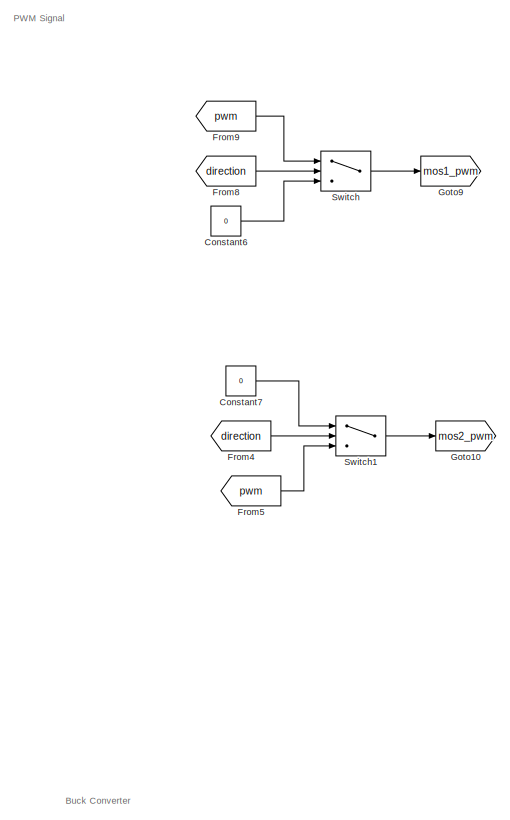
[diagram: root canvas - part 1/9, top center region]
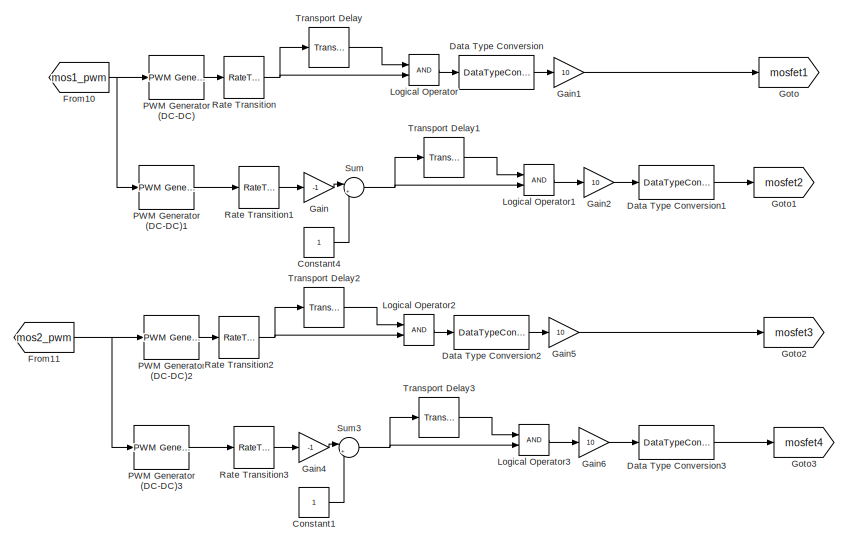
[diagram: root canvas - part 2/9, top right region]
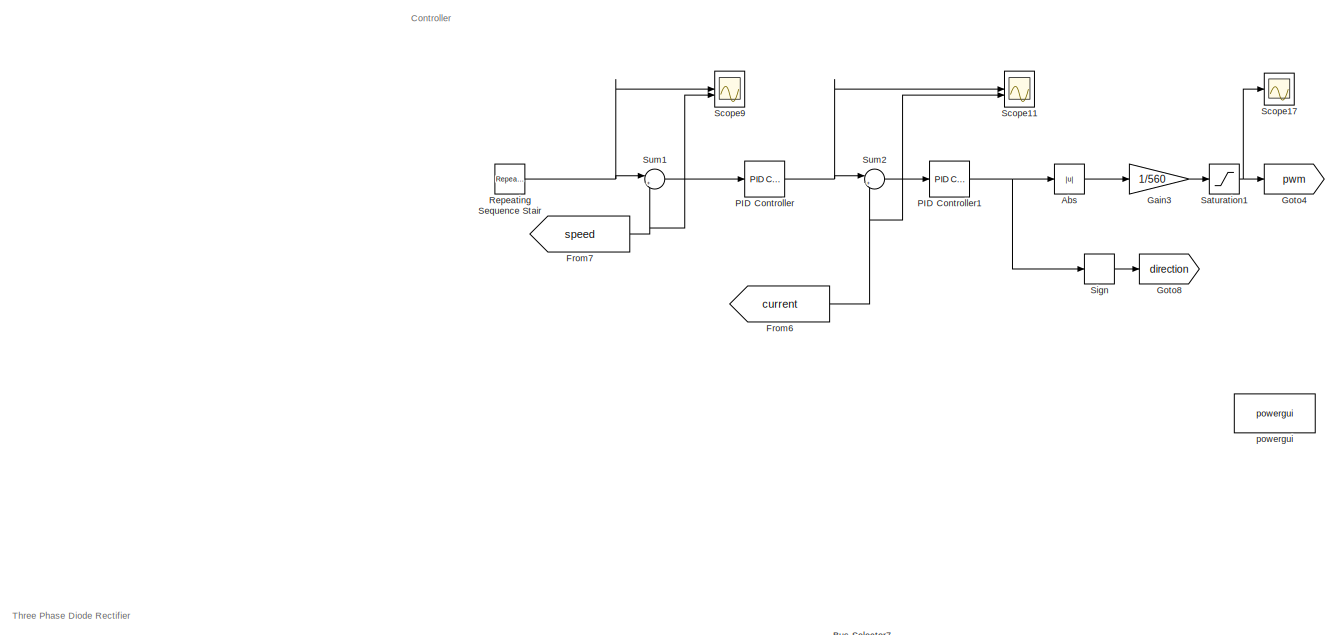
[diagram: root canvas - part 3/9, top left region]
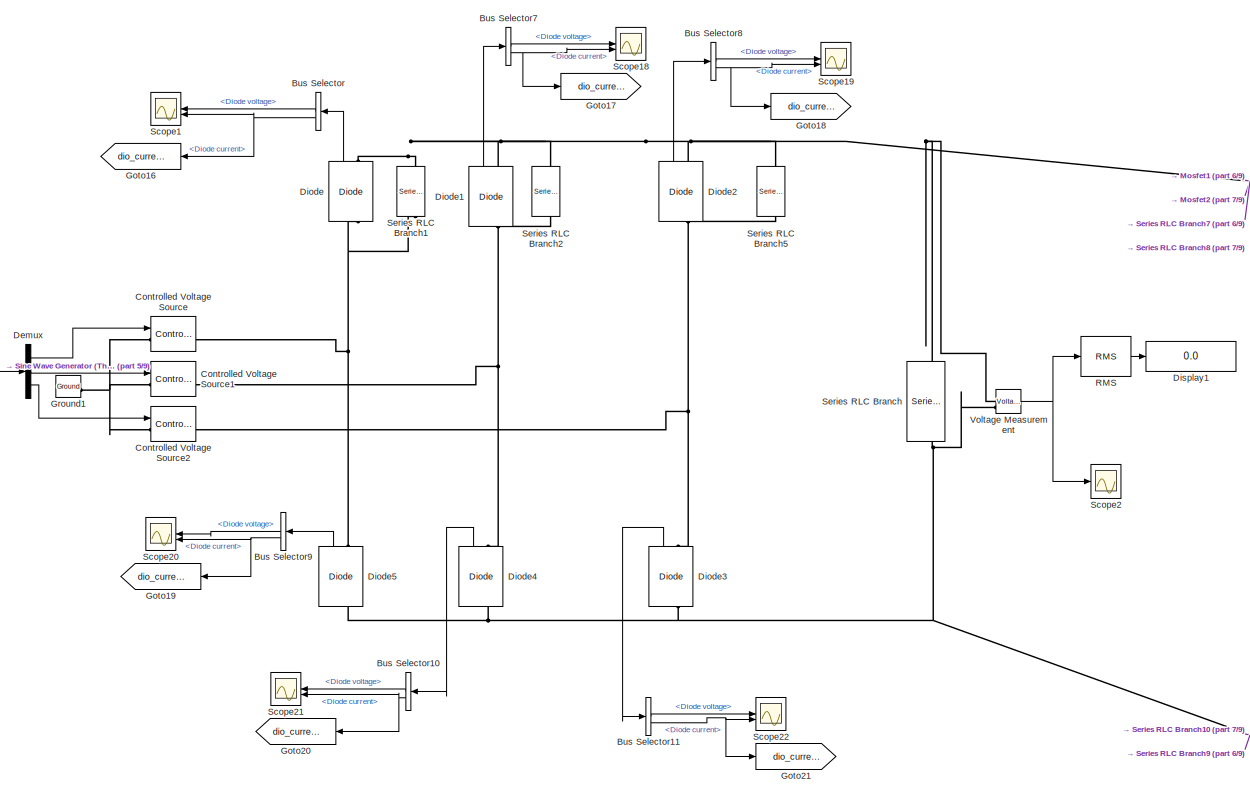
[diagram: root canvas - part 4/9, middle left region]
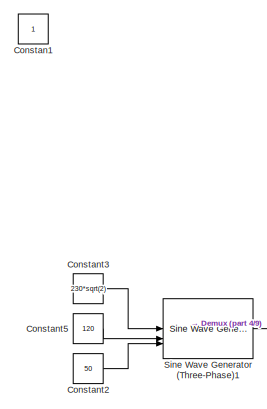
[diagram: root canvas - part 5/9, middle left region]
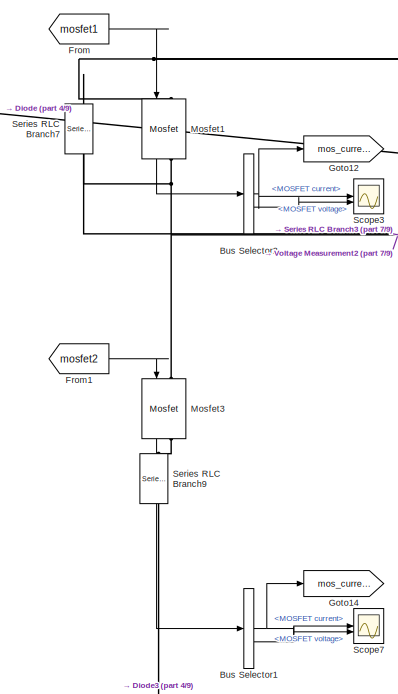
[diagram: root canvas - part 6/9, central region]
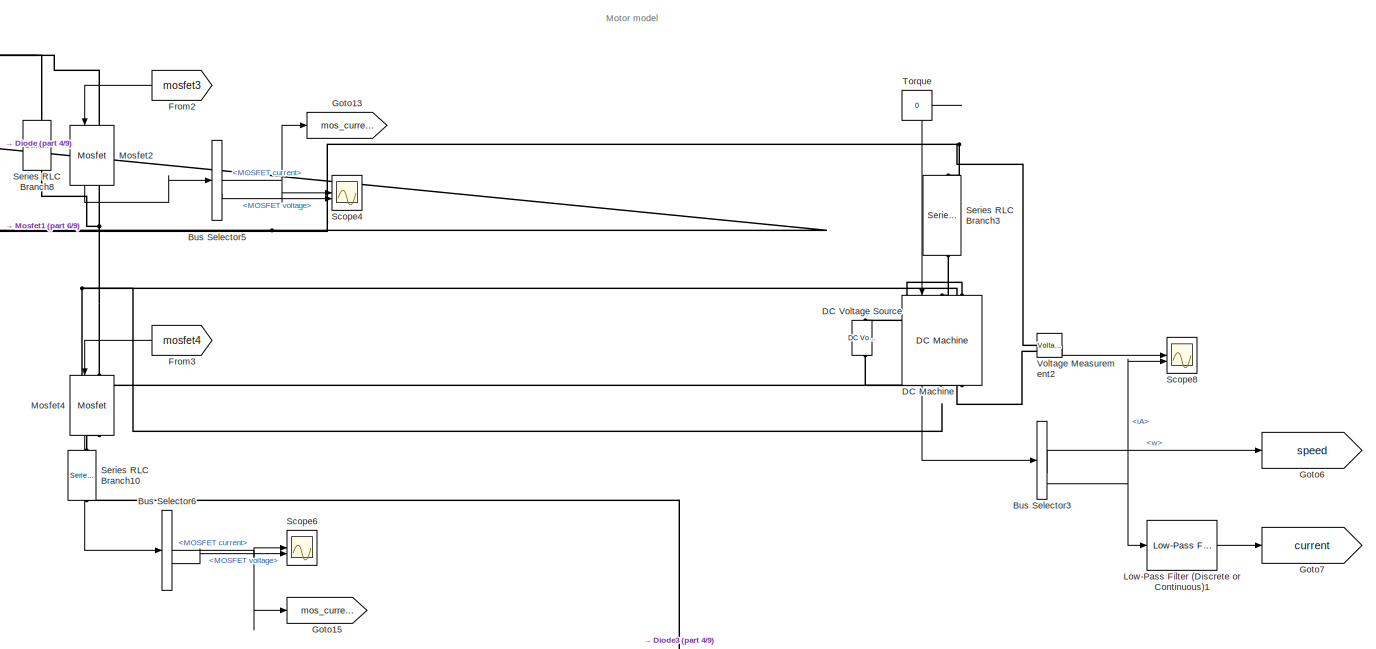
[diagram: root canvas - part 7/9, middle right region]
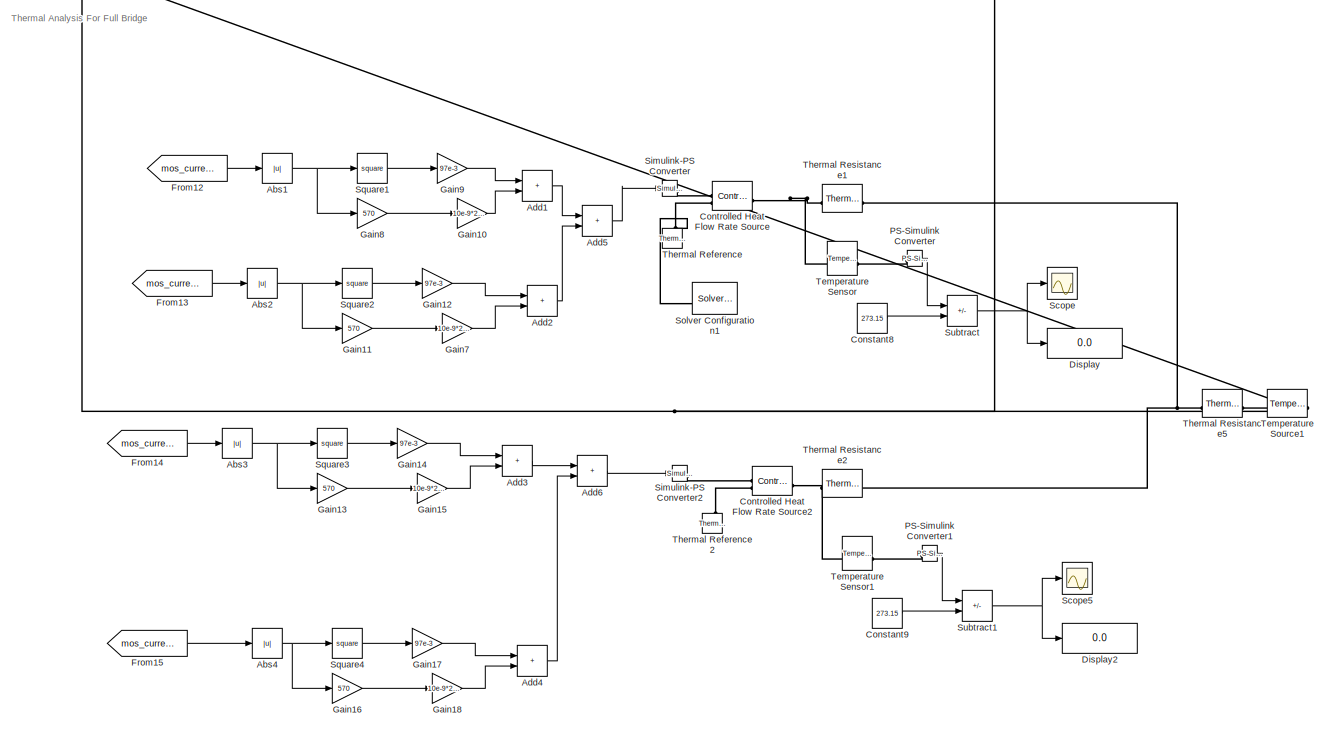
[diagram: root canvas - part 8/9, bottom right region]
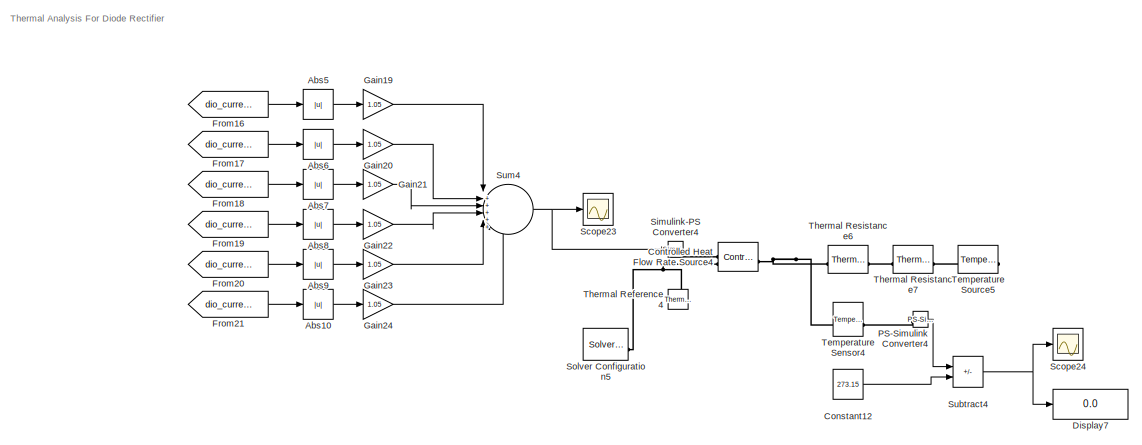
[diagram: root canvas - part 9/9, bottom left region]
MODEL slx_0c088d15fb3c
KIND model
CONFIG AbsTol = auto
CONFIG EnableMultiTasking = off
CONFIG FixedStep = 1e-6
CONFIG MaxStep = auto
CONFIG MinStep = auto
CONFIG RelTol = 1e-3
CONFIG SampleTimeConstraint = Unconstrained
CONFIG SolverName = VariableStepAuto
CONFIG StartTime = 0
CONFIG StopTime = 5*4
BLOCK [Abs] Abs
  SaturateOnIntegerOverflow = off
BLOCK [Abs] Abs1
  SaturateOnIntegerOverflow = off
BLOCK [Abs] Abs10
  SaturateOnIntegerOverflow = off
BLOCK [Abs] Abs2
  SaturateOnIntegerOverflow = off
BLOCK [Abs] Abs3
  SaturateOnIntegerOverflow = off
BLOCK [Abs] Abs4
  SaturateOnIntegerOverflow = off
BLOCK [Abs] Abs5
  SaturateOnIntegerOverflow = off
BLOCK [Abs] Abs6
  SaturateOnIntegerOverflow = off
BLOCK [Abs] Abs7
  SaturateOnIntegerOverflow = off
BLOCK [Abs] Abs8
  SaturateOnIntegerOverflow = off
BLOCK [Abs] Abs9
  SaturateOnIntegerOverflow = off
BLOCK [Sum] Add1
  IconShape = rectangular
BLOCK [Sum] Add2
  IconShape = rectangular
BLOCK [Sum] Add3
  IconShape = rectangular
BLOCK [Sum] Add4
  IconShape = rectangular
BLOCK [Sum] Add5
  IconShape = rectangular
BLOCK [Sum] Add6
  IconShape = rectangular
BLOCK [BusSelector] Bus Selector
  NameLocation = top
  OutputSignals = Diode voltage,Diode current
BLOCK [BusSelector] Bus Selector1
  OutputSignals = MOSFET current,MOSFET voltage
BLOCK [BusSelector] Bus Selector10
  NameLocation = top
  OutputSignals = Diode voltage,Diode current
BLOCK [BusSelector] Bus Selector11
  OutputSignals = Diode voltage,Diode current
BLOCK [BusSelector] Bus Selector2
  OutputSignals = MOSFET current,MOSFET voltage
BLOCK [BusSelector] Bus Selector3
  OutputSignals = Te,w,iF,iA
BLOCK [BusSelector] Bus Selector5
  OutputSignals = MOSFET current,MOSFET voltage
BLOCK [BusSelector] Bus Selector6
  OutputSignals = MOSFET current,MOSFET voltage
BLOCK [BusSelector] Bus Selector7
  OutputSignals = Diode voltage,Diode current
BLOCK [BusSelector] Bus Selector8
  OutputSignals = Diode voltage,Diode current
BLOCK [BusSelector] Bus Selector9
  NameLocation = top
  OutputSignals = Diode voltage,Diode current
BLOCK [Constant] Constan1
  IOType = siggen
BLOCK [Constant] Constant1
BLOCK [Constant] Constant12
  Value = 273.15
BLOCK [Constant] Constant2
  Value = 50
BLOCK [Constant] Constant3
  Value = 230*sqrt(2)
BLOCK [Constant] Constant4
BLOCK [Constant] Constant5
  Value = 120
BLOCK [Constant] Constant6
  Value = 0
BLOCK [Constant] Constant7
  Value = 0
BLOCK [Constant] Constant8
  Value = 273.15
BLOCK [Constant] Constant9
  Value = 273.15
BLOCK [Reference] Controlled Heat Flow Rate Source  REF=fl_lib/Thermal/Thermal Sources/Controlled Heat Flow
Rate Source
  SourceBlock = fl_lib/Thermal/Thermal Sources/Controlled Heat Flow\nRate Source
  SourceType = Controlled Heat Flow\nRate Source
BLOCK [Reference] Controlled Heat Flow Rate Source2  REF=fl_lib/Thermal/Thermal Sources/Controlled Heat Flow
Rate Source
  SourceBlock = fl_lib/Thermal/Thermal Sources/Controlled Heat Flow\nRate Source
  SourceType = Controlled Heat Flow\nRate Source
BLOCK [Reference] Controlled Heat Flow Rate Source4  REF=fl_lib/Thermal/Thermal Sources/Controlled Heat Flow
Rate Source
  SourceBlock = fl_lib/Thermal/Thermal Sources/Controlled Heat Flow\nRate Source
  SourceType = Controlled Heat Flow\nRate Source
BLOCK [Reference] Controlled Voltage Source  REF=spsControlledVoltageSourceLib/Controlled Voltage Source
  LibrarySourceBlock = sps_lib/Sources/Controlled Voltage Source
  NameLocation = left
  SourceBlock = spsControlledVoltageSourceLib/Controlled Voltage Source
  SourceType = Controlled Voltage Source
BLOCK [Reference] Controlled Voltage Source1  REF=spsControlledVoltageSourceLib/Controlled Voltage Source
  LibrarySourceBlock = sps_lib/Sources/Controlled Voltage Source
  NameLocation = left
  SourceBlock = spsControlledVoltageSourceLib/Controlled Voltage Source
  SourceType = Controlled Voltage Source
BLOCK [Reference] Controlled Voltage Source2  REF=spsControlledVoltageSourceLib/Controlled Voltage Source
  LibrarySourceBlock = sps_lib/Sources/Controlled Voltage Source
  NameLocation = left
  SourceBlock = spsControlledVoltageSourceLib/Controlled Voltage Source
  SourceType = Controlled Voltage Source
BLOCK [Reference] DC Machine  REF=spsDCMachineLib/DC Machine
  LibrarySourceBlock = sps_lib/Electrical Machines/DC Machine
  NameLocation = left
  SourceBlock = spsDCMachineLib/DC Machine
  SourceType = DC machine
BLOCK [Reference] DC Voltage Source  REF=spsDCVoltageSourceLib/DC Voltage Source
  LibrarySourceBlock = sps_lib/Sources/DC Voltage Source
  SourceBlock = spsDCVoltageSourceLib/DC Voltage Source
  SourceType = DC Voltage Source
BLOCK [DataTypeConversion] Data Type Conversion
  OutDataTypeStr = double
  RndMeth = Floor
  SaturateOnIntegerOverflow = off
BLOCK [DataTypeConversion] Data Type Conversion1
  OutDataTypeStr = double
  RndMeth = Floor
  SaturateOnIntegerOverflow = off
BLOCK [DataTypeConversion] Data Type Conversion2
  OutDataTypeStr = double
  RndMeth = Floor
  SaturateOnIntegerOverflow = off
BLOCK [DataTypeConversion] Data Type Conversion3
  OutDataTypeStr = double
  RndMeth = Floor
  SaturateOnIntegerOverflow = off
BLOCK [Demux] Demux
  Outputs = 3
BLOCK [Reference] Diode  REF=spsDiodeLib/Diode
  LibrarySourceBlock = sps_lib/Power Electronics/Diode
  NameLocation = right
  SourceBlock = spsDiodeLib/Diode
  SourceType = Diode
BLOCK [Reference] Diode1  REF=spsDiodeLib/Diode
  LibrarySourceBlock = sps_lib/Power Electronics/Diode
  NameLocation = right
  SourceBlock = spsDiodeLib/Diode
  SourceType = Diode
BLOCK [Reference] Diode2  REF=spsDiodeLib/Diode
  LibrarySourceBlock = sps_lib/Power Electronics/Diode
  NameLocation = right
  SourceBlock = spsDiodeLib/Diode
  SourceType = Diode
BLOCK [Reference] Diode3  REF=spsDiodeLib/Diode
  LibrarySourceBlock = sps_lib/Power Electronics/Diode
  NameLocation = right
  SourceBlock = spsDiodeLib/Diode
  SourceType = Diode
BLOCK [Reference] Diode4  REF=spsDiodeLib/Diode
  LibrarySourceBlock = sps_lib/Power Electronics/Diode
  NameLocation = right
  SourceBlock = spsDiodeLib/Diode
  SourceType = Diode
BLOCK [Reference] Diode5  REF=spsDiodeLib/Diode
  LibrarySourceBlock = sps_lib/Power Electronics/Diode
  NameLocation = right
  SourceBlock = spsDiodeLib/Diode
  SourceType = Diode
BLOCK [Display] Display
  Decimation = 1
BLOCK [Display] Display1
  Decimation = 1
BLOCK [Display] Display2
  Decimation = 1
BLOCK [Display] Display7
  Decimation = 1
BLOCK [From] From
  GotoTag = mosfet1
BLOCK [From] From1
  GotoTag = mosfet2
BLOCK [From] From10
  GotoTag = mos1_pwm
BLOCK [From] From11
  GotoTag = mos2_pwm
BLOCK [From] From12
  GotoTag = mos_current1
BLOCK [From] From13
  GotoTag = mos_current2
BLOCK [From] From14
  GotoTag = mos_current3
BLOCK [From] From15
  GotoTag = mos_current4
BLOCK [From] From16
  GotoTag = dio_current1
BLOCK [From] From17
  GotoTag = dio_current2
BLOCK [From] From18
  GotoTag = dio_current3
BLOCK [From] From19
  GotoTag = dio_current4
BLOCK [From] From2
  GotoTag = mosfet3
  NameLocation = top
BLOCK [From] From20
  GotoTag = dio_current5
BLOCK [From] From21
  GotoTag = dio_current6
BLOCK [From] From3
  GotoTag = mosfet4
  NameLocation = top
BLOCK [From] From4
  GotoTag = direction
BLOCK [From] From5
  GotoTag = pwm
BLOCK [From] From6
  GotoTag = current
BLOCK [From] From7
  GotoTag = speed
BLOCK [From] From8
  GotoTag = direction
BLOCK [From] From9
  GotoTag = pwm
BLOCK [Gain] Gain
  Gain = -1
BLOCK [Gain] Gain1
  Gain = 10
BLOCK [Gain] Gain10
  Gain = 10e-9*25000
BLOCK [Gain] Gain11
  Gain = 570
BLOCK [Gain] Gain12
  Gain = 97e-3
BLOCK [Gain] Gain13
  Gain = 570
BLOCK [Gain] Gain14
  Gain = 97e-3
BLOCK [Gain] Gain15
  Gain = 10e-9*25000
BLOCK [Gain] Gain16
  Gain = 570
BLOCK [Gain] Gain17
  Gain = 97e-3
BLOCK [Gain] Gain18
  Gain = 10e-9*25000
BLOCK [Gain] Gain19
  Gain = 1.05
BLOCK [Gain] Gain2
  Gain = 10
BLOCK [Gain] Gain20
  Gain = 1.05
BLOCK [Gain] Gain21
  Gain = 1.05
BLOCK [Gain] Gain22
  Gain = 1.05
BLOCK [Gain] Gain23
  Gain = 1.05
BLOCK [Gain] Gain24
  Gain = 1.05
BLOCK [Gain] Gain3
  Gain = 1/560
BLOCK [Gain] Gain4
  Gain = -1
BLOCK [Gain] Gain5
  Gain = 10
BLOCK [Gain] Gain6
  Gain = 10
BLOCK [Gain] Gain7
  Gain = 10e-9*25000
BLOCK [Gain] Gain8
  Gain = 570
BLOCK [Gain] Gain9
  Gain = 97e-3
BLOCK [Goto] Goto
  GotoTag = mosfet1
BLOCK [Goto] Goto1
  GotoTag = mosfet2
BLOCK [Goto] Goto10
  GotoTag = mos2_pwm
BLOCK [Goto] Goto12
  GotoTag = mos_current1
BLOCK [Goto] Goto13
  GotoTag = mos_current3
BLOCK [Goto] Goto14
  GotoTag = mos_current2
BLOCK [Goto] Goto15
  GotoTag = mos_current4
BLOCK [Goto] Goto16
  GotoTag = dio_current1
  NameLocation = top
BLOCK [Goto] Goto17
  GotoTag = dio_current2
BLOCK [Goto] Goto18
  GotoTag = dio_current3
BLOCK [Goto] Goto19
  GotoTag = dio_current4
  NameLocation = top
BLOCK [Goto] Goto2
  GotoTag = mosfet3
BLOCK [Goto] Goto20
  GotoTag = dio_current5
  NameLocation = top
BLOCK [Goto] Goto21
  GotoTag = dio_current6
BLOCK [Goto] Goto3
  GotoTag = mosfet4
BLOCK [Goto] Goto4
  GotoTag = pwm
BLOCK [Goto] Goto6
  GotoTag = speed
BLOCK [Goto] Goto7
  GotoTag = current
BLOCK [Goto] Goto8
  GotoTag = direction
BLOCK [Goto] Goto9
  GotoTag = mos1_pwm
BLOCK [Reference] Ground1  REF=spsGroundLib/Ground
  LibrarySourceBlock = sps_lib/Utilities/Ground
  SourceBlock = spsGroundLib/Ground
  SourceType = Ground
BLOCK [Logic] Logical Operator
  AllPortsSameDT = off
  OutDataTypeStr = boolean
BLOCK [Logic] Logical Operator1
  AllPortsSameDT = off
  OutDataTypeStr = boolean
BLOCK [Logic] Logical Operator2
  AllPortsSameDT = off
  OutDataTypeStr = boolean
BLOCK [Logic] Logical Operator3
  AllPortsSameDT = off
  OutDataTypeStr = boolean
BLOCK [Reference] Low-Pass Filter (Discrete or Continuous)1  REF=eeGeneralControl/Low-Pass Filter
(Discrete or Continuous)
  LibrarySourceBlock = ee_sl_lib/General Control/Low-Pass Filter\n(Discrete or Continuous)
  SourceBlock = eeGeneralControl/Low-Pass Filter\n(Discrete or Continuous)
  SourceType = Low-Pass Filter (Discrete or Continuous)
BLOCK [Reference] Mosfet1  REF=spsMosfetLib/Mosfet
  LibrarySourceBlock = sps_lib/Power Electronics/Mosfet
  NameLocation = left
  SourceBlock = spsMosfetLib/Mosfet
  SourceType = Mosfet
BLOCK [Reference] Mosfet2  REF=spsMosfetLib/Mosfet
  LibrarySourceBlock = sps_lib/Power Electronics/Mosfet
  NameLocation = left
  SourceBlock = spsMosfetLib/Mosfet
  SourceType = Mosfet
BLOCK [Reference] Mosfet3  REF=spsMosfetLib/Mosfet
  LibrarySourceBlock = sps_lib/Power Electronics/Mosfet
  NameLocation = left
  SourceBlock = spsMosfetLib/Mosfet
  SourceType = Mosfet
BLOCK [Reference] Mosfet4  REF=spsMosfetLib/Mosfet
  LibrarySourceBlock = sps_lib/Power Electronics/Mosfet
  NameLocation = left
  SourceBlock = spsMosfetLib/Mosfet
  SourceType = Mosfet
BLOCK [Reference] PID Controller  REF=slpidlib/PID Controller
  LibrarySourceBlock = simulink/Continuous/PID Controller
  SourceBlock = slpidlib/PID Controller
  SourceType = PID 1dof
BLOCK [Reference] PID Controller1  REF=slpidlib/PID Controller
  LibrarySourceBlock = simulink/Continuous/PID Controller
  SourceBlock = slpidlib/PID Controller
  SourceType = PID 1dof
BLOCK [Reference] PS-Simulink Converter  REF=nesl_utility/PS-Simulink
Converter
  SourceBlock = nesl_utility/PS-Simulink\nConverter
  SourceType = PS-Simulink\nConverter
BLOCK [Reference] PS-Simulink Converter1  REF=nesl_utility/PS-Simulink
Converter
  SourceBlock = nesl_utility/PS-Simulink\nConverter
  SourceType = PS-Simulink\nConverter
BLOCK [Reference] PS-Simulink Converter4  REF=nesl_utility/PS-Simulink
Converter
  SourceBlock = nesl_utility/PS-Simulink\nConverter
  SourceType = PS-Simulink\nConverter
BLOCK [Reference] PWM Generator (DC-DC)  REF=spsPWMGeneratorDCDCLib/PWM Generator
(DC-DC)
  LibrarySourceBlock = sps_lib/Power Electronics/Power Electronics Control/PWM Generator\n(DC-DC)
  SourceBlock = spsPWMGeneratorDCDCLib/PWM Generator\n(DC-DC)
  SourceType = PWM Generator (DC-DC)
BLOCK [Reference] PWM Generator (DC-DC)1  REF=spsPWMGeneratorDCDCLib/PWM Generator
(DC-DC)
  LibrarySourceBlock = sps_lib/Power Electronics/Power Electronics Control/PWM Generator\n(DC-DC)
  SourceBlock = spsPWMGeneratorDCDCLib/PWM Generator\n(DC-DC)
  SourceType = PWM Generator (DC-DC)
BLOCK [Reference] PWM Generator (DC-DC)2  REF=spsPWMGeneratorDCDCLib/PWM Generator
(DC-DC)
  LibrarySourceBlock = sps_lib/Power Electronics/Power Electronics Control/PWM Generator\n(DC-DC)
  SourceBlock = spsPWMGeneratorDCDCLib/PWM Generator\n(DC-DC)
  SourceType = PWM Generator (DC-DC)
BLOCK [Reference] PWM Generator (DC-DC)3  REF=spsPWMGeneratorDCDCLib/PWM Generator
(DC-DC)
  LibrarySourceBlock = sps_lib/Power Electronics/Power Electronics Control/PWM Generator\n(DC-DC)
  SourceBlock = spsPWMGeneratorDCDCLib/PWM Generator\n(DC-DC)
  SourceType = PWM Generator (DC-DC)
BLOCK [Reference] RMS  REF=spsRMSLib/RMS
  LibrarySourceBlock = sps_lib/Sensors and Measurements/RMS
  SourceBlock = spsRMSLib/RMS
  SourceType = RMS
BLOCK [RateTransition] Rate Transition
  OutPortSampleTime = 1e-6
BLOCK [RateTransition] Rate Transition1
  OutPortSampleTime = 1e-6
BLOCK [RateTransition] Rate Transition2
  OutPortSampleTime = 1e-6
BLOCK [RateTransition] Rate Transition3
  OutPortSampleTime = 1e-6
BLOCK [Reference] Repeating Sequence Stair  REF=simulink/Sources/Repeating
Sequence
Stair
  SourceBlock = simulink/Sources/Repeating\nSequence\nStair
  SourceType = Repeating Sequence Stair
BLOCK [Saturate] Saturation1
  LowerLimit = 0
  UpperLimit = 0.32
BLOCK [Scope] Scope
  Floating = off
  NumInputPorts = 1
  ScopeSpecificationString = Simulink.scopes.TimeScopeBlockCfg('CurrentConfiguration', extmgr.ConfigurationSet(extmgr.Configuration('Core','General UI',true,'FigureColor',[1 1 1]),extmgr.Configuration('Core','Source UI',true),extmgr.Configuration('Sources','WiredSimulink',true,'DataLoggingVariableName','ScopeData5'),extmgr.Configuration('Visuals','Time Domain',true,'SerializedDisplays',{struct('MinYLimReal','14.45917','MaxYLi...<+1568ch>
BLOCK [Scope] Scope1
  Floating = off
  NameLocation = top
  NumInputPorts = 2
  ScopeSpecificationString = Simulink.scopes.TimeScopeBlockCfg('CurrentConfiguration', extmgr.ConfigurationSet(extmgr.Configuration('Core','General UI',true,'FigureColor',[1 1 1]),extmgr.Configuration('Core','Source UI',true),extmgr.Configuration('Sources','WiredSimulink',true,'DataLoggingVariableName','ScopeData1'),extmgr.Configuration('Visuals','Time Domain',true,'SerializedDisplays',{struct('MinYLimReal','-670.67975','MaxY...<+2390ch>
BLOCK [Scope] Scope11
  Floating = off
  NumInputPorts = 2
  ScopeSpecificationString = Simulink.scopes.TimeScopeBlockCfg('CurrentConfiguration', extmgr.ConfigurationSet(extmgr.Configuration('Core','General UI',true,'FigureColor',[1 1 1]),extmgr.Configuration('Core','Source UI',true),extmgr.Configuration('Sources','WiredSimulink',true,'DataLoggingVariableName','ScopeData3'),extmgr.Configuration('Visuals','Time Domain',true,'SerializedDisplays',{struct('MinYLimReal','-18.75','MaxYLimR...<+2682ch>
BLOCK [Scope] Scope17
  Floating = off
  NumInputPorts = 1
  ScopeSpecificationString = Simulink.scopes.TimeScopeBlockCfg('CurrentConfiguration', extmgr.ConfigurationSet(extmgr.Configuration('Core','General UI',true),extmgr.Configuration('Core','Source UI',true),extmgr.Configuration('Sources','WiredSimulink',true,'DataLoggingVariableName','ScopeData4'),extmgr.Configuration('Visuals','Time Domain',true,'SerializedDisplays',{struct('MinYLimReal','-0.01339','MaxYLimReal','0.12054','YLab...<+1484ch>
BLOCK [Scope] Scope18
  Floating = off
  NumInputPorts = 2
  ScopeSpecificationString = Simulink.scopes.TimeScopeBlockCfg('CurrentConfiguration', extmgr.ConfigurationSet(extmgr.Configuration('Core','General UI',true,'FigureColor',[1 1 1]),extmgr.Configuration('Core','Source UI',true),extmgr.Configuration('Sources','WiredSimulink',true,'DataLoggingVariableName','ScopeData6'),extmgr.Configuration('Visuals','Time Domain',true,'SerializedDisplays',{struct('MinYLimReal','-636.73282','MaxY...<+2368ch>
BLOCK [Scope] Scope19
  Floating = off
  NumInputPorts = 2
  ScopeSpecificationString = Simulink.scopes.TimeScopeBlockCfg('CurrentConfiguration', extmgr.ConfigurationSet(extmgr.Configuration('Core','General UI',true,'FigureColor',[1 1 1]),extmgr.Configuration('Core','Source UI',true),extmgr.Configuration('Sources','WiredSimulink',true,'DataLoggingVariableName','ScopeData7'),extmgr.Configuration('Visuals','Time Domain',true,'SerializedDisplays',{struct('MinYLimReal','-721.95058','MaxY...<+2368ch>
BLOCK [Scope] Scope2
  Floating = off
  NumInputPorts = 1
  ScopeSpecificationString = Simulink.scopes.TimeScopeBlockCfg('CurrentConfiguration', extmgr.ConfigurationSet(extmgr.Configuration('Core','General UI',true,'FigureColor',[1 1 1]),extmgr.Configuration('Core','Source UI',true),extmgr.Configuration('Sources','WiredSimulink',true,'DataLoggingVariableName','ScopeData1'),extmgr.Configuration('Visuals','Time Domain',true,'SerializedDisplays',{struct('MinYLimReal','459.08107','MaxYL...<+1775ch>
BLOCK [Scope] Scope20
  Floating = off
  NameLocation = top
  NumInputPorts = 2
  ScopeSpecificationString = Simulink.scopes.TimeScopeBlockCfg('CurrentConfiguration', extmgr.ConfigurationSet(extmgr.Configuration('Core','General UI',true,'FigureColor',[1 1 1]),extmgr.Configuration('Core','Source UI',true),extmgr.Configuration('Sources','WiredSimulink',true,'DataLoggingVariableName','ScopeData8'),extmgr.Configuration('Visuals','Time Domain',true,'SerializedDisplays',{struct('MinYLimReal','-658.67542','MaxY...<+2368ch>
BLOCK [Scope] Scope21
  Floating = off
  NameLocation = top
  NumInputPorts = 2
  ScopeSpecificationString = Simulink.scopes.TimeScopeBlockCfg('CurrentConfiguration', extmgr.ConfigurationSet(extmgr.Configuration('Core','General UI',true,'FigureColor',[1 1 1]),extmgr.Configuration('Core','Source UI',true),extmgr.Configuration('Sources','WiredSimulink',true,'DataLoggingVariableName','ScopeData9'),extmgr.Configuration('Visuals','Time Domain',true,'SerializedDisplays',{struct('MinYLimReal','-658.67542','MaxY...<+2368ch>
BLOCK [Scope] Scope22
  Floating = off
  NumInputPorts = 2
  ScopeSpecificationString = Simulink.scopes.TimeScopeBlockCfg('CurrentConfiguration', extmgr.ConfigurationSet(extmgr.Configuration('Core','General UI',true,'FigureColor',[1 1 1]),extmgr.Configuration('Core','Source UI',true),extmgr.Configuration('Sources','WiredSimulink',true,'DataLoggingVariableName','ScopeData10'),extmgr.Configuration('Visuals','Time Domain',true,'SerializedDisplays',{struct('MinYLimReal','-658.67542','Max...<+2369ch>
BLOCK [Scope] Scope23
  Floating = off
  NumInputPorts = 1
  ScopeSpecificationString = Simulink.scopes.TimeScopeBlockCfg('CurrentConfiguration', extmgr.ConfigurationSet(extmgr.Configuration('Core','General UI',true),extmgr.Configuration('Core','Source UI',true),extmgr.Configuration('Sources','WiredSimulink',true,'DataLoggingVariableName','ScopeData11'),extmgr.Configuration('Visuals','Time Domain',true,'SerializedDisplays',{struct('MinYLimReal','-4.26021','MaxYLimReal','38.34187','YL...<+1501ch>
BLOCK [Scope] Scope24
  Floating = off
  NumInputPorts = 1
  ScopeSpecificationString = Simulink.scopes.TimeScopeBlockCfg('CurrentConfiguration', extmgr.ConfigurationSet(extmgr.Configuration('Core','General UI',true,'FigureColor',[1 1 1]),extmgr.Configuration('Core','Source UI',true),extmgr.Configuration('Sources','WiredSimulink',true,'DataLoggingVariableName','ScopeData12'),extmgr.Configuration('Visuals','Time Domain',true,'SerializedDisplays',{struct('MinYLimReal','6.34635','MaxYLi...<+1566ch>
BLOCK [Scope] Scope3
  Floating = off
  NumInputPorts = 2
  ScopeSpecificationString = Simulink.scopes.TimeScopeBlockCfg('CurrentConfiguration', extmgr.ConfigurationSet(extmgr.Configuration('Core','General UI',true,'FigureColor',[1 1 1]),extmgr.Configuration('Core','Source UI',true),extmgr.Configuration('Sources','WiredSimulink',true,'DataLoggingVariableName','ScopeData1'),extmgr.Configuration('Visuals','Time Domain',true,'SerializedDisplays',{struct('MinYLimReal','-10.71655','MaxYL...<+2449ch>
BLOCK [Scope] Scope4
  Floating = off
  NumInputPorts = 2
  ScopeSpecificationString = Simulink.scopes.TimeScopeBlockCfg('CurrentConfiguration', extmgr.ConfigurationSet(extmgr.Configuration('Core','General UI',true),extmgr.Configuration('Core','Source UI',true),extmgr.Configuration('Sources','WiredSimulink',true,'DataLoggingVariableName','ScopeData2'),extmgr.Configuration('Visuals','Time Domain',true,'SerializedDisplays',{struct('MinYLimReal','-14.91683','MaxYLimReal','0.37218','YLa...<+2422ch>
BLOCK [Scope] Scope5
  Floating = off
  NumInputPorts = 1
  ScopeSpecificationString = Simulink.scopes.TimeScopeBlockCfg('CurrentConfiguration', extmgr.ConfigurationSet(extmgr.Configuration('Core','General UI',true),extmgr.Configuration('Core','Source UI',true),extmgr.Configuration('Sources','WiredSimulink',true,'DataLoggingVariableName','ScopeData1'),extmgr.Configuration('Visuals','Time Domain',true,'SerializedDisplays',{struct('MinYLimReal','14.45917','MaxYLimReal','118.82076','YL...<+1511ch>
BLOCK [Scope] Scope6
  Floating = off
  NumInputPorts = 2
  ScopeSpecificationString = Simulink.scopes.TimeScopeBlockCfg('CurrentConfiguration', extmgr.ConfigurationSet(extmgr.Configuration('Core','General UI',true),extmgr.Configuration('Core','Source UI',true),extmgr.Configuration('Sources','WiredSimulink',true,'DataLoggingVariableName','ScopeData3'),extmgr.Configuration('Visuals','Time Domain',true,'SerializedDisplays',{struct('MinYLimReal','-20.47826','MaxYLimReal','19.08108','YL...<+2425ch>
BLOCK [Scope] Scope7
  Floating = off
  NumInputPorts = 2
  ScopeSpecificationString = Simulink.scopes.TimeScopeBlockCfg('CurrentConfiguration', extmgr.ConfigurationSet(extmgr.Configuration('Core','General UI',true),extmgr.Configuration('Core','Source UI',true),extmgr.Configuration('Sources','WiredSimulink',true,'DataLoggingVariableName','ScopeData4'),extmgr.Configuration('Visuals','Time Domain',true,'SerializedDisplays',{struct('MinYLimReal','-19.3142','MaxYLimReal','2.15135','YLab...<+2420ch>
BLOCK [Scope] Scope8
  Floating = off
  NumInputPorts = 2
  ScopeSpecificationString = Simulink.scopes.TimeScopeBlockCfg('CurrentConfiguration', extmgr.ConfigurationSet(extmgr.Configuration('Core','General UI',true,'FigureColor',[1 1 1]),extmgr.Configuration('Core','Source UI',true),extmgr.Configuration('Sources','WiredSimulink',true,'DataLoggingVariableName','ScopeData5'),extmgr.Configuration('Visuals','Time Domain',true,'SerializedDisplays',{struct('MinYLimReal','-703.57856','MaxY...<+2451ch>
BLOCK [Scope] Scope9
  Floating = off
  NumInputPorts = 2
  ScopeSpecificationString = Simulink.scopes.TimeScopeBlockCfg('CurrentConfiguration', extmgr.ConfigurationSet(extmgr.Configuration('Core','General UI',true,'FigureColor',[1 1 1]),extmgr.Configuration('Core','Source UI',true),extmgr.Configuration('Sources','WiredSimulink',true,'DataLoggingVariableName','ScopeData1'),extmgr.Configuration('Visuals','Time Domain',true,'SerializedDisplays',{struct('MinYLimReal','-37.5','MaxYLimRe...<+2495ch>
BLOCK [Reference] Series RLC Branch  REF=spsSeriesRLCBranchLib/Series RLC Branch
  LibrarySourceBlock = sps_lib/Passives/Series RLC Branch
  NameLocation = left
  SourceBlock = spsSeriesRLCBranchLib/Series RLC Branch
  SourceType = Series RLC Branch
BLOCK [Reference] Series RLC Branch1  REF=spsSeriesRLCBranchLib/Series RLC Branch
  LibrarySourceBlock = sps_lib/Passives/Series RLC Branch
  NameLocation = left
  SourceBlock = spsSeriesRLCBranchLib/Series RLC Branch
  SourceType = Series RLC Branch
BLOCK [Reference] Series RLC Branch10  REF=spsSeriesRLCBranchLib/Series RLC Branch
  LibrarySourceBlock = sps_lib/Passives/Series RLC Branch
  NameLocation = left
  SourceBlock = spsSeriesRLCBranchLib/Series RLC Branch
  SourceType = Series RLC Branch
BLOCK [Reference] Series RLC Branch2  REF=spsSeriesRLCBranchLib/Series RLC Branch
  LibrarySourceBlock = sps_lib/Passives/Series RLC Branch
  NameLocation = left
  SourceBlock = spsSeriesRLCBranchLib/Series RLC Branch
  SourceType = Series RLC Branch
BLOCK [Reference] Series RLC Branch3  REF=spsSeriesRLCBranchLib/Series RLC Branch
  LibrarySourceBlock = sps_lib/Passives/Series RLC Branch
  NameLocation = left
  SourceBlock = spsSeriesRLCBranchLib/Series RLC Branch
  SourceType = Series RLC Branch
BLOCK [Reference] Series RLC Branch5  REF=spsSeriesRLCBranchLib/Series RLC Branch
  LibrarySourceBlock = sps_lib/Passives/Series RLC Branch
  NameLocation = left
  SourceBlock = spsSeriesRLCBranchLib/Series RLC Branch
  SourceType = Series RLC Branch
BLOCK [Reference] Series RLC Branch7  REF=spsSeriesRLCBranchLib/Series RLC Branch
  LibrarySourceBlock = sps_lib/Passives/Series RLC Branch
  NameLocation = left
  SourceBlock = spsSeriesRLCBranchLib/Series RLC Branch
  SourceType = Series RLC Branch
BLOCK [Reference] Series RLC Branch8  REF=spsSeriesRLCBranchLib/Series RLC Branch
  LibrarySourceBlock = sps_lib/Passives/Series RLC Branch
  NameLocation = left
  SourceBlock = spsSeriesRLCBranchLib/Series RLC Branch
  SourceType = Series RLC Branch
BLOCK [Reference] Series RLC Branch9  REF=spsSeriesRLCBranchLib/Series RLC Branch
  LibrarySourceBlock = sps_lib/Passives/Series RLC Branch
  NameLocation = left
  SourceBlock = spsSeriesRLCBranchLib/Series RLC Branch
  SourceType = Series RLC Branch
BLOCK [Signum] Sign
BLOCK [Reference] Simulink-PS Converter  REF=nesl_utility/Simulink-PS
Converter
  SourceBlock = nesl_utility/Simulink-PS\nConverter
  SourceType = Simulink-PS\nConverter
BLOCK [Reference] Simulink-PS Converter2  REF=nesl_utility/Simulink-PS
Converter
  SourceBlock = nesl_utility/Simulink-PS\nConverter
  SourceType = Simulink-PS\nConverter
BLOCK [Reference] Simulink-PS Converter4  REF=nesl_utility/Simulink-PS
Converter
  SourceBlock = nesl_utility/Simulink-PS\nConverter
  SourceType = Simulink-PS\nConverter
BLOCK [Reference] Sine Wave Generator (Three-Phase)1  REF=eeSinGeneratorThreePhase/Sine Wave Generator
(Three-Phase)
  LibrarySourceBlock = ee_sl_lib/General Control/Sine Wave Generator\n(Three-Phase)
  SourceBlock = eeSinGeneratorThreePhase/Sine Wave Generator\n(Three-Phase)
  SourceType = Sine Wave Generator (Three-Phase)
BLOCK [Reference] Solver Configuration1  REF=nesl_utility/Solver
Configuration
  NameLocation = top
  SourceBlock = nesl_utility/Solver\nConfiguration
  SourceType = Solver\nConfiguration
BLOCK [Reference] Solver Configuration5  REF=nesl_utility/Solver
Configuration
  SourceBlock = nesl_utility/Solver\nConfiguration
  SourceType = Solver\nConfiguration
BLOCK [Math] Square1
  Operator = square
BLOCK [Math] Square2
  Operator = square
BLOCK [Math] Square3
  Operator = square
BLOCK [Math] Square4
  Operator = square
BLOCK [Sum] Subtract
  IconShape = rectangular
  Inputs = +-
BLOCK [Sum] Subtract1
  IconShape = rectangular
  Inputs = +-
BLOCK [Sum] Subtract4
  IconShape = rectangular
  Inputs = +-
BLOCK [Sum] Sum
  Inputs = |++
BLOCK [Sum] Sum1
  Inputs = |+-
BLOCK [Sum] Sum2
  Inputs = |+-
BLOCK [Sum] Sum3
  Inputs = |++
BLOCK [Sum] Sum4
  Inputs = |++++++
BLOCK [Switch] Switch
  Criteria = u2 > Threshold
  InputSameDT = off
  SaturateOnIntegerOverflow = off
BLOCK [Switch] Switch1
  Criteria = u2 > Threshold
  InputSameDT = off
  SaturateOnIntegerOverflow = off
BLOCK [Reference] Temperature Sensor  REF=fl_lib/Thermal/Thermal Sensors/Temperature Sensor
  SourceBlock = fl_lib/Thermal/Thermal Sensors/Temperature Sensor
  SourceType = Temperature Sensor
BLOCK [Reference] Temperature Sensor1  REF=fl_lib/Thermal/Thermal Sensors/Temperature Sensor
  SourceBlock = fl_lib/Thermal/Thermal Sensors/Temperature Sensor
  SourceType = Temperature Sensor
BLOCK [Reference] Temperature Sensor4  REF=fl_lib/Thermal/Thermal Sensors/Temperature Sensor
  SourceBlock = fl_lib/Thermal/Thermal Sensors/Temperature Sensor
  SourceType = Temperature Sensor
BLOCK [Reference] Temperature Source1  REF=fl_lib/Thermal/Thermal Sources/Temperature Source
  NameLocation = top
  SourceBlock = fl_lib/Thermal/Thermal Sources/Temperature Source
  SourceType = Temperature Source
BLOCK [Reference] Temperature Source5  REF=fl_lib/Thermal/Thermal Sources/Temperature Source
  NameLocation = top
  SourceBlock = fl_lib/Thermal/Thermal Sources/Temperature Source
  SourceType = Temperature Source
BLOCK [Reference] Thermal Reference  REF=fl_lib/Thermal/Thermal Elements/Thermal Reference
  NameLocation = right
  SourceBlock = fl_lib/Thermal/Thermal Elements/Thermal Reference
  SourceType = Thermal Reference
BLOCK [Reference] Thermal Reference2  REF=fl_lib/Thermal/Thermal Elements/Thermal Reference
  NameLocation = right
  SourceBlock = fl_lib/Thermal/Thermal Elements/Thermal Reference
  SourceType = Thermal Reference
BLOCK [Reference] Thermal Reference4  REF=fl_lib/Thermal/Thermal Elements/Thermal Reference
  NameLocation = right
  SourceBlock = fl_lib/Thermal/Thermal Elements/Thermal Reference
  SourceType = Thermal Reference
BLOCK [Reference] Thermal Resistance1  REF=fl_lib/Thermal/Thermal Elements/Thermal Resistance
  SourceBlock = fl_lib/Thermal/Thermal Elements/Thermal Resistance
  SourceType = Thermal Resistance
BLOCK [Reference] Thermal Resistance2  REF=fl_lib/Thermal/Thermal Elements/Thermal Resistance
  SourceBlock = fl_lib/Thermal/Thermal Elements/Thermal Resistance
  SourceType = Thermal Resistance
BLOCK [Reference] Thermal Resistance5  REF=fl_lib/Thermal/Thermal Elements/Thermal Resistance
  SourceBlock = fl_lib/Thermal/Thermal Elements/Thermal Resistance
  SourceType = Thermal Resistance
BLOCK [Reference] Thermal Resistance6  REF=fl_lib/Thermal/Thermal Elements/Thermal Resistance
  SourceBlock = fl_lib/Thermal/Thermal Elements/Thermal Resistance
  SourceType = Thermal Resistance
BLOCK [Reference] Thermal Resistance7  REF=fl_lib/Thermal/Thermal Elements/Thermal Resistance
  SourceBlock = fl_lib/Thermal/Thermal Elements/Thermal Resistance
  SourceType = Thermal Resistance
BLOCK [Constant] Torque
  Value = 0
BLOCK [TransportDelay] Transport Delay
  BufferSize = 16384
  DelayTime = 1/1000000
BLOCK [TransportDelay] Transport Delay1
  BufferSize = 16384
  DelayTime = 1/1000000
BLOCK [TransportDelay] Transport Delay2
  BufferSize = 16384
  DelayTime = 1/1000000
BLOCK [TransportDelay] Transport Delay3
  BufferSize = 16384
  DelayTime = 1/1000000
BLOCK [Reference] Voltage Measurement  REF=spsVoltageMeasurementLib/Voltage Measurement
  LibrarySourceBlock = sps_lib/Sensors and Measurements/Voltage Measurement
  SourceBlock = spsVoltageMeasurementLib/Voltage Measurement
  SourceType = Voltage Measurement
  UserDataPersistent = on
BLOCK [Reference] Voltage Measurement2  REF=spsVoltageMeasurementLib/Voltage Measurement
  LibrarySourceBlock = sps_lib/Sensors and Measurements/Voltage Measurement
  SourceBlock = spsVoltageMeasurementLib/Voltage Measurement
  SourceType = Voltage Measurement
  UserDataPersistent = on
BLOCK [Reference] powergui  REF=sps_lib/powergui
  LibrarySourceBlock = sps_lib/powergui
  Priority = 1
  SourceBlock = sps_lib/powergui
  SourceType = PSB option menu block
ANNOTATION (root): Buck Converter
ANNOTATION (root): Controller
ANNOTATION (root): Motor model
ANNOTATION (root): PWM Signal
ANNOTATION (root): Thermal Analysis For Diode Rectifier
ANNOTATION (root): Thermal Analysis For Full Bridge
ANNOTATION (root): Three Phase Diode Rectifier
LINE Abs10:1 -> Gain24:1
NET Abs1:1 -> Gain8:1, Square1:1
NET Abs2:1 -> Gain11:1, Square2:1
NET Abs3:1 -> Gain13:1, Square3:1
NET Abs4:1 -> Gain16:1, Square4:1
LINE Abs5:1 -> Gain19:1
LINE Abs6:1 -> Gain20:1
LINE Abs7:1 -> Gain21:1
LINE Abs8:1 -> Gain22:1
LINE Abs9:1 -> Gain23:1
LINE Abs:1 -> Gain3:1
LINE Add1:1 -> Add5:1
LINE Add2:1 -> Add5:2
LINE Add3:1 -> Add6:1
LINE Add4:1 -> Add6:2
LINE Add5:1 -> Simulink-PS Converter:1
LINE Add6:1 -> Simulink-PS Converter2:1
LINE Bus Selector10:1 -> Scope21:1
NET Bus Selector10:2 -> Goto20:1, Scope21:2
LINE Bus Selector11:1 -> Scope22:1
NET Bus Selector11:2 -> Goto21:1, Scope22:2
NET Bus Selector1:1 -> Goto14:1, Scope7:1
LINE Bus Selector1:2 -> Scope7:2
NET Bus Selector2:1 -> Goto12:1, Scope3:1
LINE Bus Selector2:2 -> Scope3:2
LINE Bus Selector3:2 -> Goto6:1
NET Bus Selector3:4 -> Low-Pass Filter (Discrete or Continuous)1:1, Scope8:2
NET Bus Selector5:1 -> Goto13:1, Scope4:1
LINE Bus Selector5:2 -> Scope4:2
NET Bus Selector6:1 -> Goto15:1, Scope6:1
LINE Bus Selector6:2 -> Scope6:2
LINE Bus Selector7:1 -> Scope18:1
NET Bus Selector7:2 -> Goto17:1, Scope18:2
LINE Bus Selector8:1 -> Scope19:1
NET Bus Selector8:2 -> Goto18:1, Scope19:2
LINE Bus Selector9:1 -> Scope20:1
NET Bus Selector9:2 -> Goto19:1, Scope20:2
LINE Bus Selector:1 -> Scope1:1
NET Bus Selector:2 -> Goto16:1, Scope1:2
LINE Constant12:1 -> Subtract4:2
LINE Constant1:1 -> Sum3:2
LINE Constant2:1 -> Sine Wave Generator (Three-Phase)1:3
LINE Constant3:1 -> Sine Wave Generator (Three-Phase)1:1
LINE Constant4:1 -> Sum:2
LINE Constant5:1 -> Sine Wave Generator (Three-Phase)1:2
LINE Constant6:1 -> Switch:3
LINE Constant7:1 -> Switch1:1
LINE Constant8:1 -> Subtract:2
LINE Constant9:1 -> Subtract1:2
LINE DC Machine:1 -> Bus Selector3:1
LINE Data Type Conversion1:1 -> Goto1:1
LINE Data Type Conversion2:1 -> Gain5:1
LINE Data Type Conversion3:1 -> Goto3:1
LINE Data Type Conversion:1 -> Gain1:1
LINE Demux:1 -> Controlled Voltage Source:1
LINE Demux:2 -> Controlled Voltage Source1:1
LINE Demux:3 -> Controlled Voltage Source2:1
LINE Diode1:1 -> Bus Selector7:1
LINE Diode2:1 -> Bus Selector8:1
LINE Diode3:1 -> Bus Selector11:1
LINE Diode4:1 -> Bus Selector10:1
LINE Diode5:1 -> Bus Selector9:1
LINE Diode:1 -> Bus Selector:1
NET From10:1 -> PWM Generator (DC-DC)1:1, PWM Generator (DC-DC):1
NET From11:1 -> PWM Generator (DC-DC)2:1, PWM Generator (DC-DC)3:1
LINE From12:1 -> Abs1:1
LINE From13:1 -> Abs2:1
LINE From14:1 -> Abs3:1
LINE From15:1 -> Abs4:1
LINE From16:1 -> Abs5:1
LINE From17:1 -> Abs6:1
LINE From18:1 -> Abs7:1
LINE From19:1 -> Abs8:1
LINE From1:1 -> Mosfet3:1
LINE From20:1 -> Abs9:1
LINE From21:1 -> Abs10:1
LINE From2:1 -> Mosfet2:1
LINE From3:1 -> Mosfet4:1
LINE From4:1 -> Switch1:2
LINE From5:1 -> Switch1:3
NET From6:1 -> Scope11:2, Sum2:2
NET From7:1 -> Scope9:2, Sum1:2
LINE From8:1 -> Switch:2
LINE From9:1 -> Switch:1
LINE From:1 -> Mosfet1:1
LINE Gain10:1 -> Add1:2
LINE Gain11:1 -> Gain7:1
LINE Gain12:1 -> Add2:1
LINE Gain13:1 -> Gain15:1
LINE Gain14:1 -> Add3:1
LINE Gain15:1 -> Add3:2
LINE Gain16:1 -> Gain18:1
LINE Gain17:1 -> Add4:1
LINE Gain18:1 -> Add4:2
LINE Gain19:1 -> Sum4:1
LINE Gain1:1 -> Goto:1
LINE Gain20:1 -> Sum4:2
LINE Gain21:1 -> Sum4:3
LINE Gain22:1 -> Sum4:4
LINE Gain23:1 -> Sum4:5
LINE Gain24:1 -> Sum4:6
LINE Gain2:1 -> Data Type Conversion1:1
LINE Gain3:1 -> Saturation1:1
LINE Gain4:1 -> Sum3:1
LINE Gain5:1 -> Goto2:1
LINE Gain6:1 -> Data Type Conversion3:1
LINE Gain7:1 -> Add2:2
LINE Gain8:1 -> Gain10:1
LINE Gain9:1 -> Add1:1
LINE Gain:1 -> Sum:1
LINE Logical Operator1:1 -> Gain2:1
LINE Logical Operator2:1 -> Data Type Conversion2:1
LINE Logical Operator3:1 -> Gain6:1
LINE Logical Operator:1 -> Data Type Conversion:1
LINE Low-Pass Filter (Discrete or Continuous)1:1 -> Goto7:1
LINE Mosfet1:1 -> Bus Selector2:1
LINE Mosfet2:1 -> Bus Selector5:1
LINE Mosfet3:1 -> Bus Selector1:1
LINE Mosfet4:1 -> Bus Selector6:1
NET PID Controller1:1 -> Abs:1, Sign:1
NET PID Controller:1 -> Scope11:1, Sum2:1
LINE PS-Simulink Converter1:1 -> Subtract1:1
LINE PS-Simulink Converter4:1 -> Subtract4:1
LINE PS-Simulink Converter:1 -> Subtract:1
LINE PWM Generator (DC-DC)1:1 -> Rate Transition1:1
LINE PWM Generator (DC-DC)2:1 -> Rate Transition2:1
LINE PWM Generator (DC-DC)3:1 -> Rate Transition3:1
LINE PWM Generator (DC-DC):1 -> Rate Transition:1
LINE RMS:1 -> Display1:1
LINE Rate Transition1:1 -> Gain:1
NET Rate Transition2:1 -> Logical Operator2:2, Transport Delay2:1
LINE Rate Transition3:1 -> Gain4:1
NET Rate Transition:1 -> Logical Operator:2, Transport Delay:1
NET Repeating Sequence Stair:1 -> Scope9:1, Sum1:1
NET Saturation1:1 -> Goto4:1, Scope17:1
LINE Sign:1 -> Goto8:1
LINE Sine Wave Generator (Three-Phase)1:1 -> Demux:1
LINE Square1:1 -> Gain9:1
LINE Square2:1 -> Gain12:1
LINE Square3:1 -> Gain14:1
LINE Square4:1 -> Gain17:1
NET Subtract1:1 -> Display2:1, Scope5:1
NET Subtract4:1 -> Display7:1, Scope24:1
NET Subtract:1 -> Display:1, Scope:1
LINE Sum1:1 -> PID Controller:1
LINE Sum2:1 -> PID Controller1:1
NET Sum3:1 -> Logical Operator3:2, Transport Delay3:1
NET Sum4:1 -> Scope23:1, Simulink-PS Converter4:1
NET Sum:1 -> Logical Operator1:2, Transport Delay1:1
LINE Switch1:1 -> Goto10:1
LINE Switch:1 -> Goto9:1
LINE Torque:1 -> DC Machine:1
LINE Transport Delay1:1 -> Logical Operator1:1
LINE Transport Delay2:1 -> Logical Operator2:1
LINE Transport Delay3:1 -> Logical Operator3:1
LINE Transport Delay:1 -> Logical Operator:1
LINE Voltage Measurement2:1 -> Scope8:1
NET Voltage Measurement:1 -> RMS:1, Scope2:1
PNET net1: Controlled Heat Flow Rate Source2:LConn1 -- Temperature Sensor1:LConn1 -- Thermal Resistance2:LConn1
PLINE Controlled Heat Flow Rate Source2:RConn1 -- Simulink-PS Converter2:RConn1
PLINE Controlled Heat Flow Rate Source2:RConn2 -- Thermal Reference2:LConn1
PNET net2: Controlled Heat Flow Rate Source4:LConn1 -- Temperature Sensor4:LConn1 -- Thermal Resistance6:LConn1
PLINE Controlled Heat Flow Rate Source4:RConn1 -- Simulink-PS Converter4:RConn1
PNET net3: Controlled Heat Flow Rate Source4:RConn2 -- Solver Configuration5:RConn1 -- Thermal Reference4:LConn1
PNET net4: Controlled Heat Flow Rate Source:LConn1 -- Temperature Sensor:LConn1 -- Thermal Resistance1:LConn1
PLINE Controlled Heat Flow Rate Source:RConn1 -- Simulink-PS Converter:RConn1
PNET net5: Controlled Heat Flow Rate Source:RConn2 -- Solver Configuration1:RConn1 -- Thermal Reference:LConn1
PNET net6: Controlled Voltage Source1:LConn1 -- Controlled Voltage Source2:LConn1 -- Controlled Voltage Source:LConn1 -- Ground1:LConn1
PNET net7: Controlled Voltage Source1:RConn1 -- Diode1:LConn1 -- Diode4:RConn1 -- Series RLC Branch2:RConn1
PNET net8: Controlled Voltage Source2:RConn1 -- Diode2:LConn1 -- Diode3:RConn1 -- Series RLC Branch5:RConn1
PNET net9: Controlled Voltage Source:RConn1 -- Diode5:RConn1 -- Diode:LConn1 -- Series RLC Branch1:RConn1
PLINE DC Machine:LConn1 -- Series RLC Branch3:RConn1
PLINE DC Machine:LConn2 -- DC Voltage Source:RConn1
PNET net10: DC Machine:RConn1 -- Mosfet2:RConn1 -- Mosfet4:LConn1 -- Series RLC Branch8:RConn1 -- Voltage Measurement2:LConn2
PLINE DC Machine:RConn2 -- DC Voltage Source:LConn1
PNET net11: Diode1:RConn1 -- Diode2:RConn1 -- Diode:RConn1 -- Mosfet1:LConn1 -- Mosfet2:LConn1 -- Series RLC Branch1:LConn1 -- Series RLC Branch2:LConn1 -- Series RLC Branch5:LConn1 -- Series RLC Branch7:LConn1 -- Series RLC Branch8:LConn1 -- Series RLC Branch:LConn1 -- Voltage Measurement:LConn1
PNET net12: Diode3:LConn1 -- Diode4:LConn1 -- Diode5:LConn1 -- Series RLC Branch10:RConn1 -- Series RLC Branch9:RConn1 -- Series RLC Branch:RConn1 -- Voltage Measurement:LConn2
PNET net13: Mosfet1:RConn1 -- Mosfet3:LConn1 -- Series RLC Branch3:LConn1 -- Series RLC Branch7:RConn1 -- Voltage Measurement2:LConn1
PLINE Mosfet3:RConn1 -- Series RLC Branch9:LConn1
PLINE Mosfet4:RConn1 -- Series RLC Branch10:LConn1
PLINE PS-Simulink Converter1:LConn1 -- Temperature Sensor1:RConn1
PLINE PS-Simulink Converter4:LConn1 -- Temperature Sensor4:RConn1
PLINE PS-Simulink Converter:LConn1 -- Temperature Sensor:RConn1
PLINE Temperature Source1:LConn1 -- Thermal Resistance5:RConn1
PLINE Temperature Source5:LConn1 -- Thermal Resistance7:RConn1
PNET net14: Thermal Resistance1:RConn1 -- Thermal Resistance2:RConn1 -- Thermal Resistance5:LConn1
PLINE Thermal Resistance6:RConn1 -- Thermal Resistance7:LConn1
note: NET lines group one-source signal fan-out (src -> all destinations, sorted); 1:1 wires keep LINE; PNET lines group multi-terminal physical nets as a canonical sorted terminal list (undirected conserving connections); 2-terminal nets keep the pairwise PLINE form
